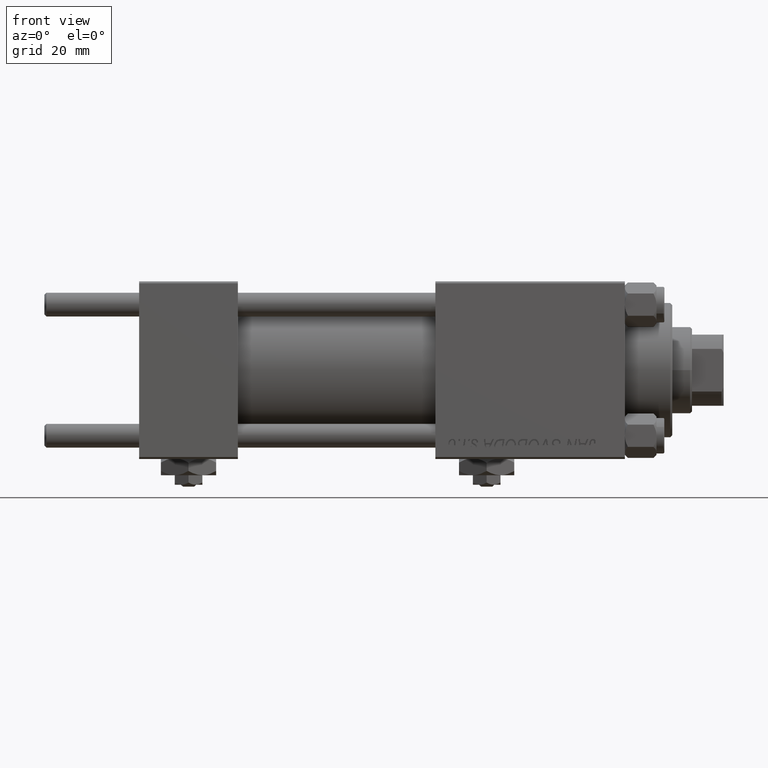
[diagram: clean part render]
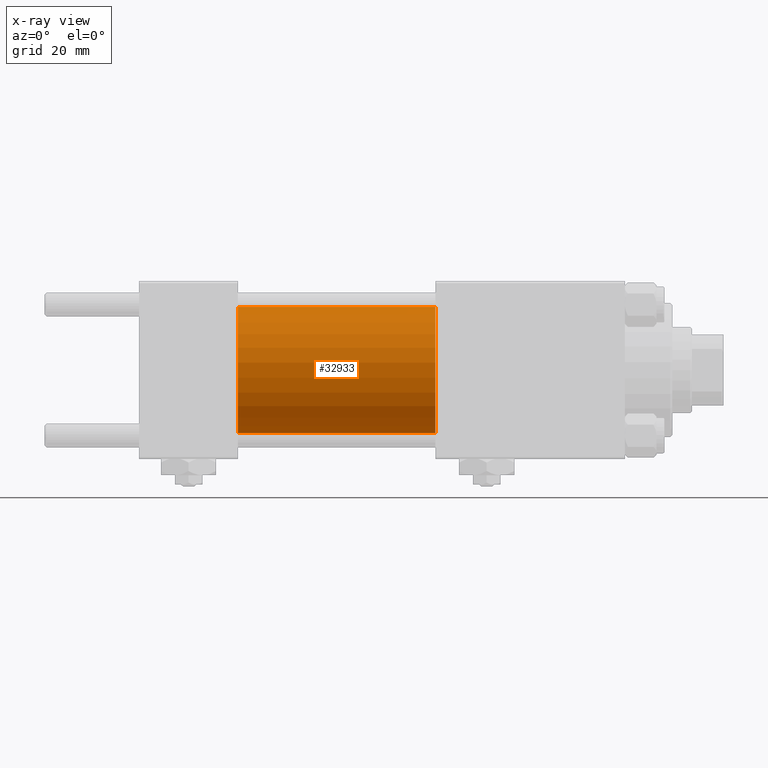
[diagram: x-ray — body ghosted, one internal face saturated and labeled with its STEP entity id]
A machine part, front view, then the same camera in x-ray: the body is ghosted and one INTERNAL B-rep face — a face not visible from any outside direction — is saturated and labeled: STEP entity #32933.
In plain terms, the highlighted cylindrical surface (partial cylindrical patch) has radius 16 mm, axis along (-1, -0, -0).
Its self-contained STEP definition (entity closure, byte-faithful):
#1813 = DIRECTION ( 'NONE',  ( 1.000000000000000000, 0.000000000000000000, 0.000000000000000000 ) ) ;
#2991 = VERTEX_POINT ( 'NONE', #11357 ) ;
#5037 = CYLINDRICAL_SURFACE ( 'NONE', #47466, 16.00000000000000000 ) ;
#5757 = CARTESIAN_POINT ( 'NONE',  ( 25.00000000000000000, 0.000000000000000000, 0.000000000000000000 ) ) ;
#6616 = ORIENTED_EDGE ( 'NONE', *, *, #49587, .T. ) ;
#8914 = LINE ( 'NONE', #28322, #18205 ) ;
#8921 = EDGE_LOOP ( 'NONE', ( #23907, #6616, #12418, #13713 ) ) ;
#11357 = CARTESIAN_POINT ( 'NONE',  ( 25.00000000000000000, 0.000000000000000000, 16.00000000000000000 ) ) ;
#11545 = CARTESIAN_POINT ( 'NONE',  ( 75.00000000000001421, 0.000000000000000000, 16.00000000000000000 ) ) ;
#12418 = ORIENTED_EDGE ( 'NONE', *, *, #29210, .F. ) ;
#12671 = DIRECTION ( 'NONE',  ( 1.000000000000000000, 0.000000000000000000, 0.000000000000000000 ) ) ;
#13713 = ORIENTED_EDGE ( 'NONE', *, *, #33283, .F. ) ;
#17108 = DIRECTION ( 'NONE',  ( 0.000000000000000000, 0.000000000000000000, 1.000000000000000000 ) ) ;
#17838 = DIRECTION ( 'NONE',  ( 0.000000000000000000, 0.000000000000000000, -1.000000000000000000 ) ) ;
#18205 = VECTOR ( 'NONE', #44051, 1000.000000000000000 ) ;
#18673 = CIRCLE ( 'NONE', #41260, 16.00000000000000000 ) ;
#18891 = AXIS2_PLACEMENT_3D ( 'NONE', #5757, #1813, #17838 ) ;
#19631 = EDGE_CURVE ( 'NONE', #33194, #32057, #18673, .T. ) ;
#22412 = VECTOR ( 'NONE', #45282, 1000.000000000000000 ) ;
#23278 = LINE ( 'NONE', #39250, #22412 ) ;
#23907 = ORIENTED_EDGE ( 'NONE', *, *, #19631, .T. ) ;
#25243 = CARTESIAN_POINT ( 'NONE',  ( 75.00000000000001421, 0.000000000000000000, 0.000000000000000000 ) ) ;
#26460 = CIRCLE ( 'NONE', #18891, 16.00000000000000000 ) ;
#28322 = CARTESIAN_POINT ( 'NONE',  ( 75.00000000000001421, 0.000000000000000000, 16.00000000000000000 ) ) ;
#29210 = EDGE_CURVE ( 'NONE', #2991, #41602, #26460, .T. ) ;
#30650 = CARTESIAN_POINT ( 'NONE',  ( 75.00000000000001421, 1.959434878635765131E-15, -16.00000000000000000 ) ) ;
#32057 = VERTEX_POINT ( 'NONE', #30650 ) ;
#32933 = ADVANCED_FACE ( 'NONE', ( #40434 ), #5037, .F. ) ;
#33194 = VERTEX_POINT ( 'NONE', #11545 ) ;
#33283 = EDGE_CURVE ( 'NONE', #33194, #2991, #8914, .T. ) ;
#36761 = DIRECTION ( 'NONE',  ( -1.000000000000000000, -0.000000000000000000, -0.000000000000000000 ) ) ;
#39250 = CARTESIAN_POINT ( 'NONE',  ( 75.00000000000001421, 1.959434878635765131E-15, -16.00000000000000000 ) ) ;
#40434 = FACE_OUTER_BOUND ( 'NONE', #8921, .T. ) ;
#41260 = AXIS2_PLACEMENT_3D ( 'NONE', #48588, #12671, #44653 ) ;
#41602 = VERTEX_POINT ( 'NONE', #51295 ) ;
#44051 = DIRECTION ( 'NONE',  ( -1.000000000000000000, -0.000000000000000000, -0.000000000000000000 ) ) ;
#44653 = DIRECTION ( 'NONE',  ( 0.000000000000000000, 0.000000000000000000, -1.000000000000000000 ) ) ;
#45282 = DIRECTION ( 'NONE',  ( -1.000000000000000000, -0.000000000000000000, -0.000000000000000000 ) ) ;
#47466 = AXIS2_PLACEMENT_3D ( 'NONE', #25243, #36761, #17108 ) ;
#48588 = CARTESIAN_POINT ( 'NONE',  ( 75.00000000000001421, 0.000000000000000000, 0.000000000000000000 ) ) ;
#49587 = EDGE_CURVE ( 'NONE', #32057, #41602, #23278, .T. ) ;
#51295 = CARTESIAN_POINT ( 'NONE',  ( 25.00000000000000000, 1.959434878635765131E-15, -16.00000000000000000 ) ) ;